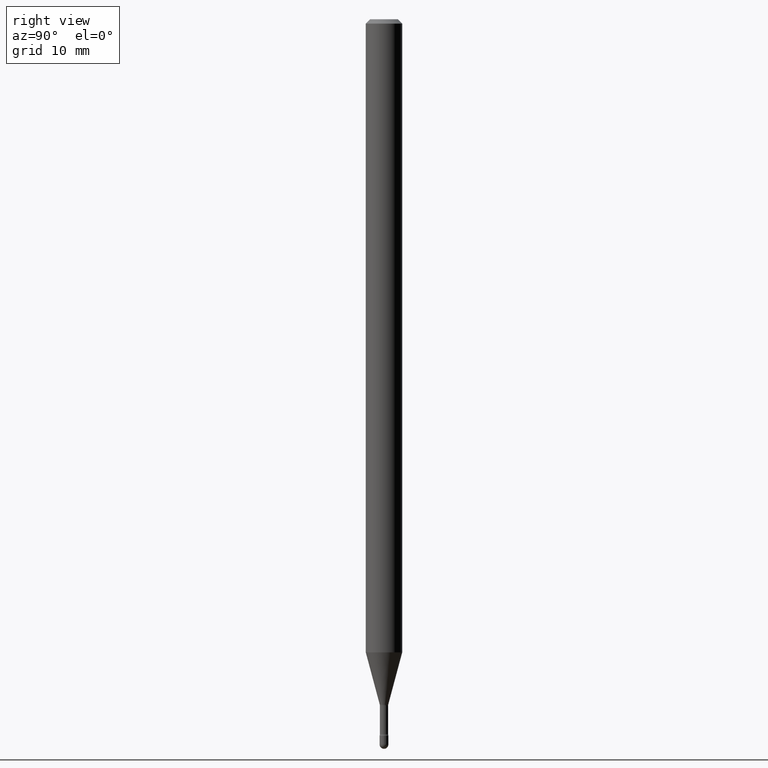
[diagram: clean part render]
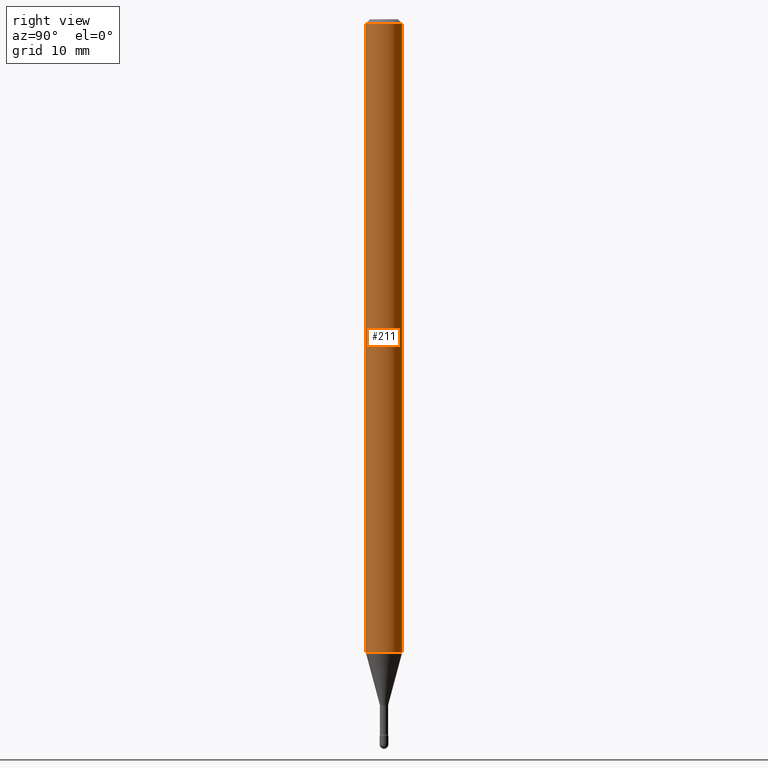
[diagram: same view with one face highlighted and labeled with its STEP entity id]
A machine part, right view. The second image highlights one B-rep face of the part: STEP entity #211.
In plain terms, the highlighted cylindrical surface (edge-blend (fillet) strip) has radius 1.5875 mm, axis along (-0, 0, 1).
Its self-contained STEP definition (entity closure, byte-faithful):
#18 = AXIS2_PLACEMENT_3D ( 'NONE', #86, #124, #80 ) ;
#30 = DIRECTION ( 'NONE',  ( -2.445515325509068465E-29, 3.491414720523559495E-15, 1.000000000000000000 ) ) ;
#33 = VERTEX_POINT ( 'NONE', #382 ) ;
#40 = CARTESIAN_POINT ( 'NONE',  ( 4.440892098501154699E-16, 0.06249999999999240885, -2.169368740913667271 ) ) ;
#69 = DIRECTION ( 'NONE',  ( -6.982962677686265922E-15, -1.000000000000000000, 3.483106191921935554E-15 ) ) ;
#80 = DIRECTION ( 'NONE',  ( -6.982962677686265922E-15, -1.000000000000000000, 4.370956789862821150E-15 ) ) ;
#84 = AXIS2_PLACEMENT_3D ( 'NONE', #250, #30, #69 ) ;
#86 = CARTESIAN_POINT ( 'NONE',  ( 5.305224502584683767E-29, -7.574165956269636631E-15, -2.169368740913666826 ) ) ;
#124 = DIRECTION ( 'NONE',  ( -2.445515325509068465E-29, 3.491414720523559495E-15, 1.000000000000000000 ) ) ;
#158 = EDGE_CURVE ( 'NONE', #360, #33, #332, .T. ) ;
#187 = CARTESIAN_POINT ( 'NONE',  ( 4.440892098500625669E-16, 0.06250000000000000000, 2.598599788585235948E-16 ) ) ;
#193 = CIRCLE ( 'NONE', #18, 0.06250000000000000000 ) ;
#211 = ADVANCED_FACE ( 'NONE', ( #471 ), #421, .T. ) ;
#216 = CARTESIAN_POINT ( 'NONE',  ( -1.169113584055446105E-44, 1.669184350826100908E-30, 4.780733988912460139E-16 ) ) ;
#230 = LINE ( 'NONE', #187, #287 ) ;
#250 = CARTESIAN_POINT ( 'NONE',  ( 3.668272988263622946E-31, -5.237122080785368381E-17, -0.01500000000000008271 ) ) ;
#251 = EDGE_LOOP ( 'NONE', ( #345, #305, #464, #425 ) ) ;
#262 = DIRECTION ( 'NONE',  ( -2.445515325509068745E-29, 3.491414720523559101E-15, 1.000000000000000000 ) ) ;
#286 = VECTOR ( 'NONE', #262, 39.37007874015748143 ) ;
#287 = VECTOR ( 'NONE', #372, 39.37007874015748143 ) ;
#293 = EDGE_CURVE ( 'NONE', #371, #360, #564, .T. ) ;
#295 = CARTESIAN_POINT ( 'NONE',  ( -4.364351673553385199E-16, -0.06250000000000757727, -2.169368740913666826 ) ) ;
#298 = VERTEX_POINT ( 'NONE', #40 ) ;
#303 = DIRECTION ( 'NONE',  ( -2.445515325509068465E-29, 3.491414720523559495E-15, 1.000000000000000000 ) ) ;
#305 = ORIENTED_EDGE ( 'NONE', *, *, #538, .T. ) ;
#306 = DIRECTION ( 'NONE',  ( -6.982962677686265922E-15, -1.000000000000000000, 3.491414720523560678E-15 ) ) ;
#332 = CIRCLE ( 'NONE', #84, 0.06250000000000000000 ) ;
#345 = ORIENTED_EDGE ( 'NONE', *, *, #346, .T. ) ;
#346 = EDGE_CURVE ( 'NONE', #371, #298, #193, .T. ) ;
#355 = CARTESIAN_POINT ( 'NONE',  ( -4.364351673553912750E-16, -0.06250000000000005551, -0.01499999999999986587 ) ) ;
#360 = VERTEX_POINT ( 'NONE', #355 ) ;
#371 = VERTEX_POINT ( 'NONE', #295 ) ;
#372 = DIRECTION ( 'NONE',  ( -2.445515325509068745E-29, 3.491414720523559101E-15, 1.000000000000000000 ) ) ;
#382 = CARTESIAN_POINT ( 'NONE',  ( 4.440892098501160615E-16, 0.06249999999999995837, -0.01500000000000030129 ) ) ;
#421 = CYLINDRICAL_SURFACE ( 'NONE', #442, 0.06250000000000000000 ) ;
#425 = ORIENTED_EDGE ( 'NONE', *, *, #293, .F. ) ;
#442 = AXIS2_PLACEMENT_3D ( 'NONE', #216, #303, #306 ) ;
#464 = ORIENTED_EDGE ( 'NONE', *, *, #158, .F. ) ;
#471 = FACE_OUTER_BOUND ( 'NONE', #251, .T. ) ;
#508 = CARTESIAN_POINT ( 'NONE',  ( -4.364351673553916201E-16, -0.06250000000000000000, 6.962868189239685810E-16 ) ) ;
#538 = EDGE_CURVE ( 'NONE', #298, #33, #230, .T. ) ;
#564 = LINE ( 'NONE', #508, #286 ) ;